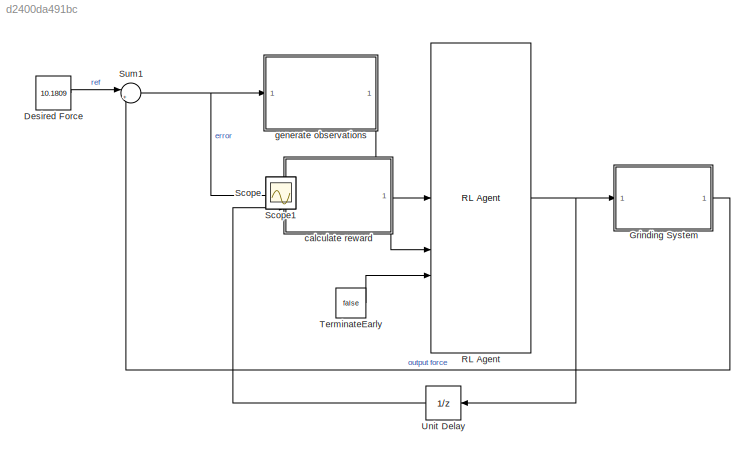
MODEL slx_d2400da491bc
KIND model
CONFIG AbsTol = auto
CONFIG EnableMultiTasking = on
CONFIG FixedStep = auto
CONFIG MaxStep = auto
CONFIG MinStep = auto
CONFIG RelTol = 1e-3
CONFIG SampleTimeConstraint = Unconstrained
CONFIG SolverName = ode45
CONFIG StartTime = 0.0
CONFIG StopTime = 200
BLOCK [Constant] Desired Force
  Value = 10.1809
BLOCK [ModelReference] Grinding System
  ModelNameDialog = rb_system.slx
  ModelReferenceVersion = 1.5
BLOCK [Reference] RL Agent  REF=rllib/RL Agent
  SourceBlock = rllib/RL Agent
  SourceType = RL Agent
BLOCK [Scope] Scope
  Floating = off
  IOType = viewer
  NumInputPorts = 1
  ScopeSpecificationString = Simulink.scopes.TimeScopeBlockCfg('CurrentConfiguration', extmgr.ConfigurationSet(extmgr.Configuration('Core','General UI',true),extmgr.Configuration('Core','Source UI',true),extmgr.Configuration('Sources','WiredSimulink',true),extmgr.Configuration('Visuals','Time Domain',true,'SerializedDisplays',{struct('MinYLimReal','8.8122','MaxYLimReal','10.8122','YLabelReal','','MinYLimMag','8.8122','MaxYLim...<+1538ch>
BLOCK [Scope] Scope1
  Floating = off
  IOType = viewer
  NumInputPorts = 1
  ScopeSpecificationString = Simulink.scopes.TimeScopeBlockCfg('CurrentConfiguration', extmgr.ConfigurationSet(extmgr.Configuration('Core','General UI',true),extmgr.Configuration('Core','Source UI',true),extmgr.Configuration('Sources','WiredSimulink',true,'DataLoggingVariableName','ScopeData1'),extmgr.Configuration('Visuals','Time Domain',true,'SerializedDisplays',{struct('MinYLimReal','-10.00000','MaxYLimReal','10.00000','YL...<+1522ch>
BLOCK [Sum] Sum1
  Inputs = |+-
  SaturateOnIntegerOverflow = on
BLOCK [Constant] TerminateEarly
  Value = false
BLOCK [UnitDelay] Unit Delay
  HasFrameUpgradeWarning = on
  NameLocation = top
  SampleTime = -1
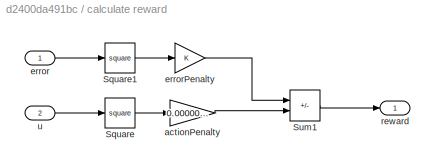
BLOCK [SubSystem] calculate reward
BLOCK [Math] calculate reward/Square
  Operator = square
BLOCK [Math] calculate reward/Square1
  Operator = square
BLOCK [Sum] calculate reward/Sum1
  IconShape = rectangular
  Inputs = --
  OutDataTypeStr = double
BLOCK [Gain] calculate reward/actionPenalty
  Gain = 0.0000000000000001
BLOCK [Inport] calculate reward/error
BLOCK [Gain] calculate reward/errorPenalty
BLOCK [Outport] calculate reward/reward
  VectorParamsAs1DForOutWhenUnconnected = off
BLOCK [Inport] calculate reward/u
  Port = 2
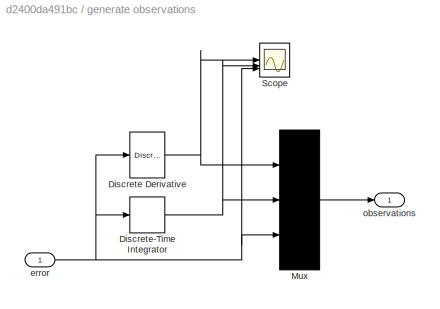
BLOCK [SubSystem] generate observations
BLOCK [Reference] generate observations/Discrete Derivative  REF=simulink/Discrete/Discrete Derivative
  SourceBlock = simulink/Discrete/Discrete Derivative
  SourceType = Discrete Derivative
BLOCK [DiscreteIntegrator] generate observations/Discrete-Time Integrator
  ICPrevOutput = DiscIntNeverNeededParam
  ICPrevScaledInput = DiscIntNeverNeededParam
  InitialConditionSetting = Auto
  SampleTime = Ts
BLOCK [Mux] generate observations/Mux
  DisplayOption = bar
  Inputs = 3
BLOCK [Scope] generate observations/Scope
  Floating = off
  NumInputPorts = 3
  ScopeSpecificationString = Simulink.scopes.TimeScopeBlockCfg('CurrentConfiguration', extmgr.ConfigurationSet(extmgr.Configuration('Core','General UI',true),extmgr.Configuration('Core','Source UI',true),extmgr.Configuration('Sources','WiredSimulink',true,'DataLoggingVariableName','ScopeData2'),extmgr.Configuration('Visuals','Time Domain',true,'SerializedDisplays',{struct('MinYLimReal','-1.76827','MaxYLimReal','15.22376','YLa...<+1511ch>
BLOCK [Inport] generate observations/error
BLOCK [Outport] generate observations/observations
  VectorParamsAs1DForOutWhenUnconnected = off
LINE Desired Force:1 -> Sum1:1
LINE Grinding System:1 -> Sum1:2
NET RL Agent:1 -> Grinding System:1, Unit Delay:1
NET Sum1:1 -> calculate reward:1, generate observations:1
LINE TerminateEarly:1 -> RL Agent:3
LINE Unit Delay:1 -> calculate reward:2
LINE calculate reward/Square1:1 -> calculate reward/errorPenalty:1
LINE calculate reward/Square:1 -> calculate reward/actionPenalty:1
LINE calculate reward/Sum1:1 -> calculate reward/reward:1
LINE calculate reward/actionPenalty:1 -> calculate reward/Sum1:2
LINE calculate reward/error:1 -> calculate reward/Square1:1
LINE calculate reward/errorPenalty:1 -> calculate reward/Sum1:1
LINE calculate reward/u:1 -> calculate reward/Square:1
LINE calculate reward:1 -> RL Agent:2
NET generate observations/Discrete Derivative:1 -> generate observations/Mux:1, generate observations/Scope:1
NET generate observations/Discrete-Time Integrator:1 -> generate observations/Mux:2, generate observations/Scope:2
LINE generate observations/Mux:1 -> generate observations/observations:1
NET generate observations/error:1 -> generate observations/Discrete Derivative:1, generate observations/Discrete-Time Integrator:1, generate observations/Mux:3, generate observations/Scope:3
LINE generate observations:1 -> RL Agent:1
note: NET lines group one-source signal fan-out (src -> all destinations, sorted); 1:1 wires keep LINE
